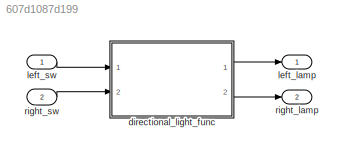
MODEL slx_607d1087d199
KIND model
CONFIG AbsTol = auto
CONFIG EnableMultiTasking = off
CONFIG FixedStep = 0.01
CONFIG MaxStep = auto
CONFIG MinStep = auto
CONFIG RelTol = 1e-3
CONFIG SampleTimeConstraint = Unconstrained
CONFIG Solver = FixedStepDiscrete
CONFIG SolverName = FixedStepDiscrete
CONFIG StartTime = 0.0
CONFIG StopTime = 10.0
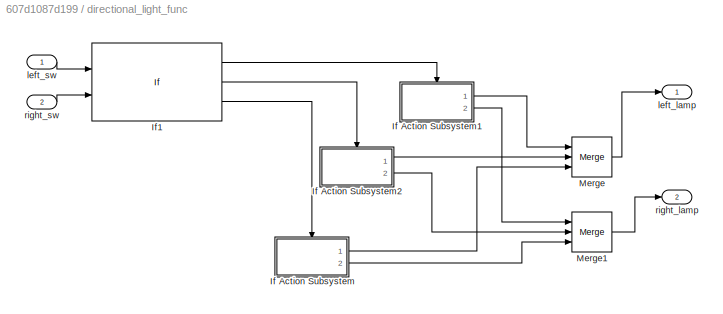
BLOCK [SubSystem] directional_light_func
  Ports = [2, 2]
  RTWFcnNameOpts = Use subsystem name
  RTWFileNameOpts = Use subsystem name
  RTWSystemCode = Reusable function
  RequestExecContextInheritance = off
  TreatAsAtomicUnit = on
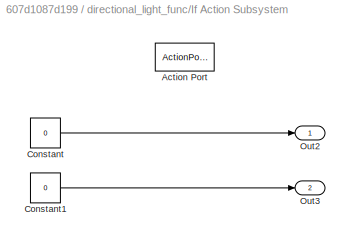
BLOCK [SubSystem] directional_light_func/If Action Subsystem
  Ports = [0, 2, 0, 0, 0, 0, 0, 1]
  RequestExecContextInheritance = off
  TreatAsAtomicUnit = on
BLOCK [ActionPort] directional_light_func/If Action Subsystem/Action Port
  ActionType = else
BLOCK [Constant] directional_light_func/If Action Subsystem/Constant
  OutDataTypeStr = boolean
  Value = 0
BLOCK [Constant] directional_light_func/If Action Subsystem/Constant1
  OutDataTypeStr = boolean
  Value = 0
BLOCK [Outport] directional_light_func/If Action Subsystem/Out2
  IconDisplay = Port number
BLOCK [Outport] directional_light_func/If Action Subsystem/Out3
  IconDisplay = Port number
  Port = 2
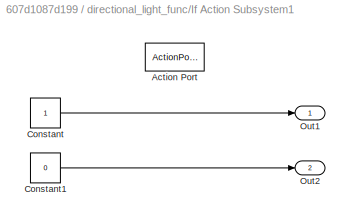
BLOCK [SubSystem] directional_light_func/If Action Subsystem1
  Ports = [0, 2, 0, 0, 0, 0, 0, 1]
  RequestExecContextInheritance = off
  TreatAsAtomicUnit = on
BLOCK [ActionPort] directional_light_func/If Action Subsystem1/Action Port
  ActionType = then
BLOCK [Constant] directional_light_func/If Action Subsystem1/Constant
  OutDataTypeStr = boolean
BLOCK [Constant] directional_light_func/If Action Subsystem1/Constant1
  OutDataTypeStr = boolean
  Value = 0
BLOCK [Outport] directional_light_func/If Action Subsystem1/Out1
  IconDisplay = Port number
BLOCK [Outport] directional_light_func/If Action Subsystem1/Out2
  IconDisplay = Port number
  Port = 2
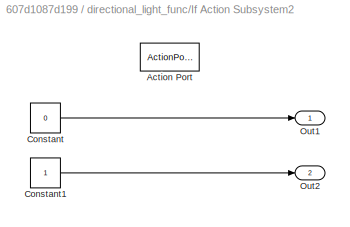
BLOCK [SubSystem] directional_light_func/If Action Subsystem2
  Ports = [0, 2, 0, 0, 0, 0, 0, 1]
  RequestExecContextInheritance = off
  TreatAsAtomicUnit = on
BLOCK [ActionPort] directional_light_func/If Action Subsystem2/Action Port
  ActionType = elseif
BLOCK [Constant] directional_light_func/If Action Subsystem2/Constant
  OutDataTypeStr = boolean
  Value = 0
BLOCK [Constant] directional_light_func/If Action Subsystem2/Constant1
  OutDataTypeStr = boolean
BLOCK [Outport] directional_light_func/If Action Subsystem2/Out1
  IconDisplay = Port number
BLOCK [Outport] directional_light_func/If Action Subsystem2/Out2
  IconDisplay = Port number
  Port = 2
BLOCK [If] directional_light_func/If1
  ElseIfExpressions = u1 ==0 & u2 ~=0
  IfExpression = u1 ~=0 & u2 ==0
  NumInputs = 2
  Ports = [2, 3]
BLOCK [Merge] directional_light_func/Merge
  Inputs = 3
  Ports = [3, 1]
BLOCK [Merge] directional_light_func/Merge1
  Inputs = 3
  Ports = [3, 1]
BLOCK [Outport] directional_light_func/left_lamp
  IconDisplay = Port number
  OutDataTypeStr = boolean
BLOCK [Inport] directional_light_func/left_sw
  IconDisplay = Port number
  OutDataTypeStr = boolean
BLOCK [Outport] directional_light_func/right_lamp
  IconDisplay = Port number
  OutDataTypeStr = boolean
  Port = 2
BLOCK [Inport] directional_light_func/right_sw
  IconDisplay = Port number
  OutDataTypeStr = boolean
  Port = 2
BLOCK [Outport] left_lamp
  IconDisplay = Port number
  OutDataTypeStr = boolean
BLOCK [Inport] left_sw
  IconDisplay = Port number
  OutDataTypeStr = boolean
BLOCK [Outport] right_lamp
  IconDisplay = Port number
  OutDataTypeStr = boolean
  Port = 2
BLOCK [Inport] right_sw
  IconDisplay = Port number
  OutDataTypeStr = boolean
  Port = 2
LINE directional_light_func/If Action Subsystem/Constant1:1 -> directional_light_func/If Action Subsystem/Out3:1
LINE directional_light_func/If Action Subsystem/Constant:1 -> directional_light_func/If Action Subsystem/Out2:1
LINE directional_light_func/If Action Subsystem1/Constant1:1 -> directional_light_func/If Action Subsystem1/Out2:1
LINE directional_light_func/If Action Subsystem1/Constant:1 -> directional_light_func/If Action Subsystem1/Out1:1
LINE directional_light_func/If Action Subsystem1:1 -> directional_light_func/Merge:1
LINE directional_light_func/If Action Subsystem1:2 -> directional_light_func/Merge1:1
LINE directional_light_func/If Action Subsystem2/Constant1:1 -> directional_light_func/If Action Subsystem2/Out2:1
LINE directional_light_func/If Action Subsystem2/Constant:1 -> directional_light_func/If Action Subsystem2/Out1:1
LINE directional_light_func/If Action Subsystem2:1 -> directional_light_func/Merge:2
LINE directional_light_func/If Action Subsystem2:2 -> directional_light_func/Merge1:2
LINE directional_light_func/If Action Subsystem:1 -> directional_light_func/Merge:3
LINE directional_light_func/If Action Subsystem:2 -> directional_light_func/Merge1:3
LINE directional_light_func/If1:1 -> directional_light_func/If Action Subsystem1:ifaction
LINE directional_light_func/If1:2 -> directional_light_func/If Action Subsystem2:ifaction
LINE directional_light_func/If1:3 -> directional_light_func/If Action Subsystem:ifaction
LINE directional_light_func/Merge1:1 -> directional_light_func/right_lamp:1
LINE directional_light_func/Merge:1 -> directional_light_func/left_lamp:1
LINE directional_light_func/left_sw:1 -> directional_light_func/If1:1
LINE directional_light_func/right_sw:1 -> directional_light_func/If1:2
LINE directional_light_func:1 -> left_lamp:1
LINE directional_light_func:2 -> right_lamp:1
LINE left_sw:1 -> directional_light_func:1
LINE right_sw:1 -> directional_light_func:2
